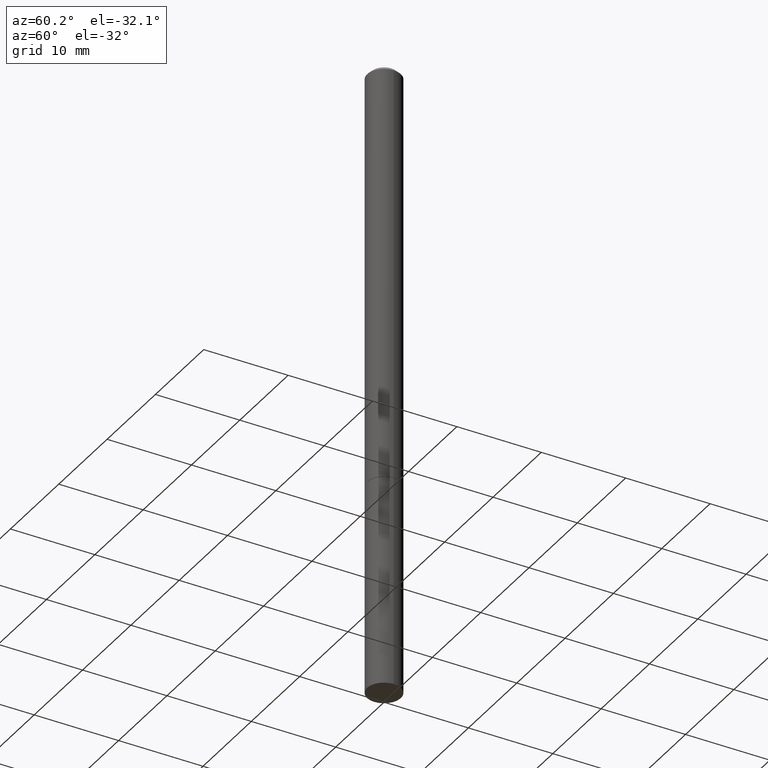
[diagram: clean part render]
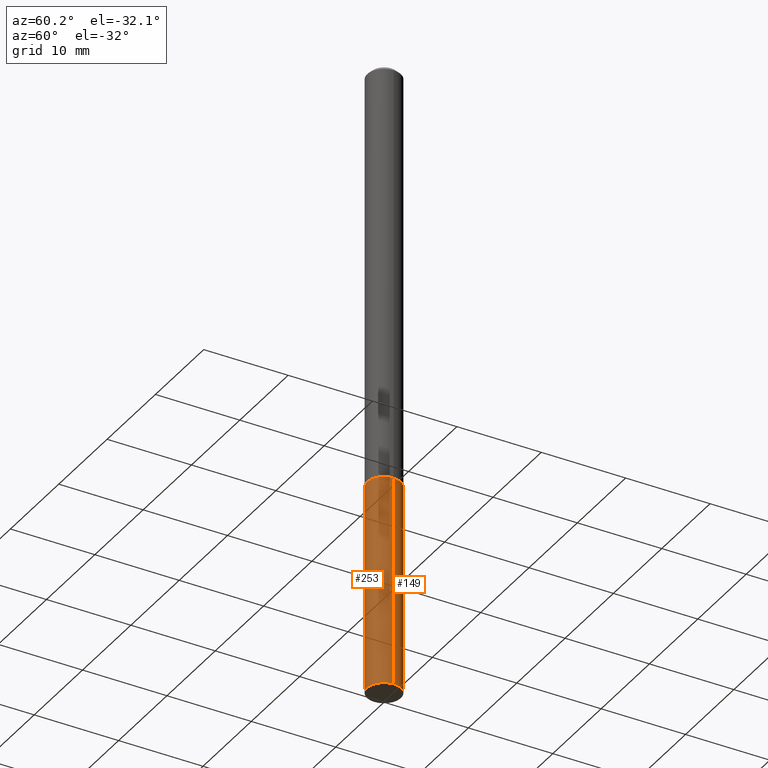
[diagram: same view with one multi-face feature highlighted, each face labeled with its STEP entity id]
A machine part, auxiliary view. The highlighted faces form ONE feature: a constant-radius fillet chain: 2 tangent blend faces with common blend radius 2.0002 mm. The faces share edges in the B-rep.
Their STEP definitions:
[1] entity #149 (Cylinder):
#5 = LINE ( 'NONE', #341, #233 ) ;
#8 = DIRECTION ( 'NONE',  ( 1.000000000000000000, -6.982962677686261977E-15, 0.000000000000000000 ) ) ;
#30 = EDGE_CURVE ( 'NONE', #349, #351, #139, .T. ) ;
#32 = DIRECTION ( 'NONE',  ( -2.445468806185136597E-29, 3.491481338843145583E-15, 1.000000000000000000 ) ) ;
#39 = EDGE_LOOP ( 'NONE', ( #258, #195, #312, #110 ) ) ;
#41 = VECTOR ( 'NONE', #207, 39.37007874015748143 ) ;
#44 = DIRECTION ( 'NONE',  ( 1.000000000000000000, -6.982962677686265922E-15, 4.876176775795935232E-29 ) ) ;
#92 = DIRECTION ( 'NONE',  ( -2.445468806185136877E-29, 3.491481338843145188E-15, 1.000000000000000000 ) ) ;
#101 = DIRECTION ( 'NONE',  ( -2.445468806185136597E-29, 3.491481338843145583E-15, 1.000000000000000000 ) ) ;
#103 = FACE_OUTER_BOUND ( 'NONE', #39, .T. ) ;
#110 = ORIENTED_EDGE ( 'NONE', *, *, #169, .F. ) ;
#128 = AXIS2_PLACEMENT_3D ( 'NONE', #144, #32, #8 ) ;
#130 = CARTESIAN_POINT ( 'NONE',  ( 0.07875000000000000056, -1.085955440820383187E-14, -2.952799999999999869 ) ) ;
#135 = EDGE_CURVE ( 'NONE', #140, #254, #215, .T. ) ;
#139 = CIRCLE ( 'NONE', #128, 0.07875000000000000056 ) ;
#140 = VERTEX_POINT ( 'NONE', #130 ) ;
#144 = CARTESIAN_POINT ( 'NONE',  ( 4.813905344975440714E-29, -6.872981015512730918E-15, -1.968499999999999694 ) ) ;
#149 = ADVANCED_FACE ( 'NONE', ( #103 ), #241, .T. ) ;
#169 = EDGE_CURVE ( 'NONE', #140, #349, #180, .T. ) ;
#180 = LINE ( 'NONE', #297, #41 ) ;
#195 = ORIENTED_EDGE ( 'NONE', *, *, #284, .T. ) ;
#204 = CARTESIAN_POINT ( 'NONE',  ( -0.07875000000000000056, -8.031761152013305527E-15, -1.968499999999999694 ) ) ;
#207 = DIRECTION ( 'NONE',  ( -2.445468806185136877E-29, 3.491481338843145188E-15, 1.000000000000000000 ) ) ;
#215 = CIRCLE ( 'NONE', #262, 0.07875000000000000056 ) ;
#217 = AXIS2_PLACEMENT_3D ( 'NONE', #306, #269, #44 ) ;
#224 = CARTESIAN_POINT ( 'NONE',  ( -0.07875000000000000056, -8.031761152013305527E-15, -2.952799999999999869 ) ) ;
#230 = CARTESIAN_POINT ( 'NONE',  ( 0.07875000000000000056, -7.422889326380523475E-15, -1.968499999999999694 ) ) ;
#233 = VECTOR ( 'NONE', #92, 39.37007874015748143 ) ;
#241 = CYLINDRICAL_SURFACE ( 'NONE', #217, 0.07875000000000000056 ) ;
#254 = VERTEX_POINT ( 'NONE', #224 ) ;
#258 = ORIENTED_EDGE ( 'NONE', *, *, #135, .T. ) ;
#262 = AXIS2_PLACEMENT_3D ( 'NONE', #358, #101, #353 ) ;
#269 = DIRECTION ( 'NONE',  ( -2.445468806185136597E-29, 3.491481338843145583E-15, 1.000000000000000000 ) ) ;
#284 = EDGE_CURVE ( 'NONE', #254, #351, #5, .T. ) ;
#297 = CARTESIAN_POINT ( 'NONE',  ( 0.07875000000000000056, -5.499083108677934443E-16, 3.839989210939299016E-30 ) ) ;
#306 = CARTESIAN_POINT ( 'NONE',  ( 0.000000000000000000, 0.000000000000000000, 0.000000000000000000 ) ) ;
#312 = ORIENTED_EDGE ( 'NONE', *, *, #30, .F. ) ;
#341 = CARTESIAN_POINT ( 'NONE',  ( -0.07875000000000000056, 5.595524044110789003E-16, -3.873661383575737792E-30 ) ) ;
#349 = VERTEX_POINT ( 'NONE', #230 ) ;
#351 = VERTEX_POINT ( 'NONE', #204 ) ;
#353 = DIRECTION ( 'NONE',  ( 1.000000000000000000, -6.982962677686261977E-15, 0.000000000000000000 ) ) ;
#358 = CARTESIAN_POINT ( 'NONE',  ( 7.220980290903470182E-29, -1.030964609733603853E-14, -2.952799999999999869 ) ) ;
[2] entity #253 (Cylinder):
#5 = LINE ( 'NONE', #341, #233 ) ;
#19 = AXIS2_PLACEMENT_3D ( 'NONE', #259, #112, #64 ) ;
#38 = CARTESIAN_POINT ( 'NONE',  ( 4.813905344975440714E-29, -6.872981015512730918E-15, -1.968499999999999694 ) ) ;
#41 = VECTOR ( 'NONE', #207, 39.37007874015748143 ) ;
#64 = DIRECTION ( 'NONE',  ( 1.000000000000000000, -6.982962677686265922E-15, 4.876176775795935232E-29 ) ) ;
#68 = DIRECTION ( 'NONE',  ( 1.000000000000000000, -6.982962677686261977E-15, 0.000000000000000000 ) ) ;
#92 = DIRECTION ( 'NONE',  ( -2.445468806185136877E-29, 3.491481338843145188E-15, 1.000000000000000000 ) ) ;
#112 = DIRECTION ( 'NONE',  ( -2.445468806185136597E-29, 3.491481338843145583E-15, 1.000000000000000000 ) ) ;
#130 = CARTESIAN_POINT ( 'NONE',  ( 0.07875000000000000056, -1.085955440820383187E-14, -2.952799999999999869 ) ) ;
#138 = CYLINDRICAL_SURFACE ( 'NONE', #19, 0.07875000000000000056 ) ;
#140 = VERTEX_POINT ( 'NONE', #130 ) ;
#145 = DIRECTION ( 'NONE',  ( -2.445468806185136597E-29, 3.491481338843145583E-15, 1.000000000000000000 ) ) ;
#150 = AXIS2_PLACEMENT_3D ( 'NONE', #324, #145, #68 ) ;
#169 = EDGE_CURVE ( 'NONE', #140, #349, #180, .T. ) ;
#176 = FACE_OUTER_BOUND ( 'NONE', #256, .T. ) ;
#180 = LINE ( 'NONE', #297, #41 ) ;
#181 = CIRCLE ( 'NONE', #245, 0.07875000000000000056 ) ;
#196 = DIRECTION ( 'NONE',  ( -2.445468806185136597E-29, 3.491481338843145583E-15, 1.000000000000000000 ) ) ;
#203 = ORIENTED_EDGE ( 'NONE', *, *, #284, .F. ) ;
#204 = CARTESIAN_POINT ( 'NONE',  ( -0.07875000000000000056, -8.031761152013305527E-15, -1.968499999999999694 ) ) ;
#207 = DIRECTION ( 'NONE',  ( -2.445468806185136877E-29, 3.491481338843145188E-15, 1.000000000000000000 ) ) ;
#223 = ORIENTED_EDGE ( 'NONE', *, *, #169, .T. ) ;
#224 = CARTESIAN_POINT ( 'NONE',  ( -0.07875000000000000056, -8.031761152013305527E-15, -2.952799999999999869 ) ) ;
#230 = CARTESIAN_POINT ( 'NONE',  ( 0.07875000000000000056, -7.422889326380523475E-15, -1.968499999999999694 ) ) ;
#232 = ORIENTED_EDGE ( 'NONE', *, *, #363, .T. ) ;
#233 = VECTOR ( 'NONE', #92, 39.37007874015748143 ) ;
#245 = AXIS2_PLACEMENT_3D ( 'NONE', #38, #196, #291 ) ;
#249 = EDGE_CURVE ( 'NONE', #351, #349, #181, .T. ) ;
#253 = ADVANCED_FACE ( 'NONE', ( #176 ), #138, .T. ) ;
#254 = VERTEX_POINT ( 'NONE', #224 ) ;
#256 = EDGE_LOOP ( 'NONE', ( #203, #232, #223, #263 ) ) ;
#259 = CARTESIAN_POINT ( 'NONE',  ( 0.000000000000000000, 0.000000000000000000, 0.000000000000000000 ) ) ;
#263 = ORIENTED_EDGE ( 'NONE', *, *, #249, .F. ) ;
#284 = EDGE_CURVE ( 'NONE', #254, #351, #5, .T. ) ;
#291 = DIRECTION ( 'NONE',  ( 1.000000000000000000, -6.982962677686261977E-15, 0.000000000000000000 ) ) ;
#297 = CARTESIAN_POINT ( 'NONE',  ( 0.07875000000000000056, -5.499083108677934443E-16, 3.839989210939299016E-30 ) ) ;
#308 = CIRCLE ( 'NONE', #150, 0.07875000000000000056 ) ;
#324 = CARTESIAN_POINT ( 'NONE',  ( 7.220980290903470182E-29, -1.030964609733603853E-14, -2.952799999999999869 ) ) ;
#341 = CARTESIAN_POINT ( 'NONE',  ( -0.07875000000000000056, 5.595524044110789003E-16, -3.873661383575737792E-30 ) ) ;
#349 = VERTEX_POINT ( 'NONE', #230 ) ;
#351 = VERTEX_POINT ( 'NONE', #204 ) ;
#363 = EDGE_CURVE ( 'NONE', #254, #140, #308, .T. ) ;